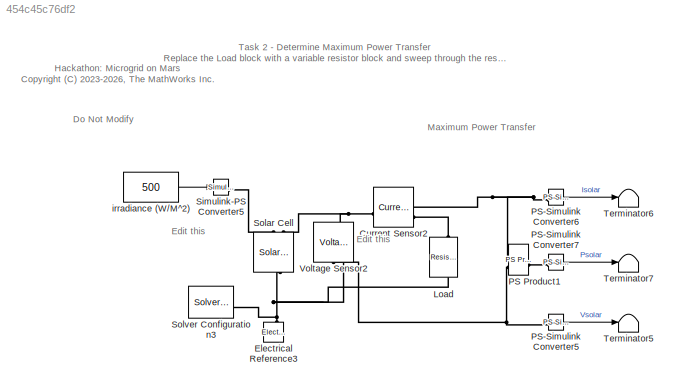
MODEL slx_454c45c76df2
KIND model
CONFIG SolverName = VariableStepAuto
CONFIG StopTime = 10
BLOCK [Constant]  irradiance (W//M^2)
  Value = 500
BLOCK [Reference] Current Sensor2  REF=fl_lib/Electrical/Electrical Sensors/Current Sensor
  SourceBlock = fl_lib/Electrical/Electrical Sensors/Current Sensor
  SourceType = Current Sensor
BLOCK [Reference] Electrical Reference3  REF=fl_lib/Electrical/Electrical Elements/Electrical Reference
  NameLocation = right
  SourceBlock = fl_lib/Electrical/Electrical Elements/Electrical Reference
  SourceType = Electrical Reference
BLOCK [Reference] Load  REF=fl_lib/Electrical/Electrical Elements/Resistor
  NameLocation = left
  SourceBlock = fl_lib/Electrical/Electrical Elements/Resistor
  SourceType = Resistor
BLOCK [Reference] PS Product1  REF=fl_lib/Physical Signals/Functions/PS Product
  SourceBlock = fl_lib/Physical Signals/Functions/PS Product
  SourceType = PS Product
BLOCK [Reference] PS-Simulink Converter5  REF=nesl_utility/PS-Simulink
Converter
  SourceBlock = nesl_utility/PS-Simulink\nConverter
  SourceType = PS-Simulink\nConverter
BLOCK [Reference] PS-Simulink Converter6  REF=nesl_utility/PS-Simulink
Converter
  SourceBlock = nesl_utility/PS-Simulink\nConverter
  SourceType = PS-Simulink\nConverter
BLOCK [Reference] PS-Simulink Converter7  REF=nesl_utility/PS-Simulink
Converter
  SourceBlock = nesl_utility/PS-Simulink\nConverter
  SourceType = PS-Simulink\nConverter
BLOCK [Reference] Simulink-PS Converter5  REF=nesl_utility/Simulink-PS
Converter
  SourceBlock = nesl_utility/Simulink-PS\nConverter
  SourceType = Simulink-PS\nConverter
BLOCK [Reference] Solar Cell  REF=ee_lib/Sources/Solar Cell
  NameLocation = left
  SourceBlock = ee_lib/Sources/Solar Cell
  SourceType = Solar Cell
BLOCK [Reference] Solver Configuration3  REF=nesl_utility/Solver
Configuration
  SourceBlock = nesl_utility/Solver\nConfiguration
  SourceType = Solver\nConfiguration
BLOCK [Terminator] Terminator5
BLOCK [Terminator] Terminator6
BLOCK [Terminator] Terminator7
BLOCK [Reference] Voltage Sensor2  REF=fl_lib/Electrical/Electrical Sensors/Voltage Sensor
  NameLocation = right
  SourceBlock = fl_lib/Electrical/Electrical Sensors/Voltage Sensor
  SourceType = Voltage Sensor
ANNOTATION (root): Hackathon: Microgrid on Mars <copyright redacted>
ANNOTATION (root): Task 2 - Determine Maximum Power Transfer Replace the Load block with a variable resistor block and sweep through the resistance value from 10 to 1 Ohms. Then, modify the settings of the Solar Cell to scale a solar panel array to provide a voltage of 500V and the power rating determined in Task 1.
ANNOTATION (root): Do Not Modify
ANNOTATION (root): Edit this
ANNOTATION (root): Maximum Power Transfer
LINE  irradiance (W//M^2):1 -> Simulink-PS Converter5:1
LINE PS-Simulink Converter5:1 -> Terminator5:1
LINE PS-Simulink Converter6:1 -> Terminator6:1
LINE PS-Simulink Converter7:1 -> Terminator7:1
PNET net1: Current Sensor2:LConn1 -- Solar Cell:LConn2 -- Voltage Sensor2:LConn1
PNET net2: Current Sensor2:RConn1 -- PS Product1:LConn1 -- PS-Simulink Converter6:LConn1
PLINE Current Sensor2:RConn2 -- Load:LConn1
PNET net3: Electrical Reference3:LConn1 -- Load:RConn1 -- Solar Cell:RConn1 -- Solver Configuration3:RConn1 -- Voltage Sensor2:RConn2
PNET net4: PS Product1:LConn2 -- PS-Simulink Converter5:LConn1 -- Voltage Sensor2:RConn1
PLINE PS Product1:RConn1 -- PS-Simulink Converter7:LConn1
PLINE Simulink-PS Converter5:RConn1 -- Solar Cell:LConn1
note: PNET lines group multi-terminal physical nets as a canonical sorted terminal list (undirected conserving connections); 2-terminal nets keep the pairwise PLINE form
